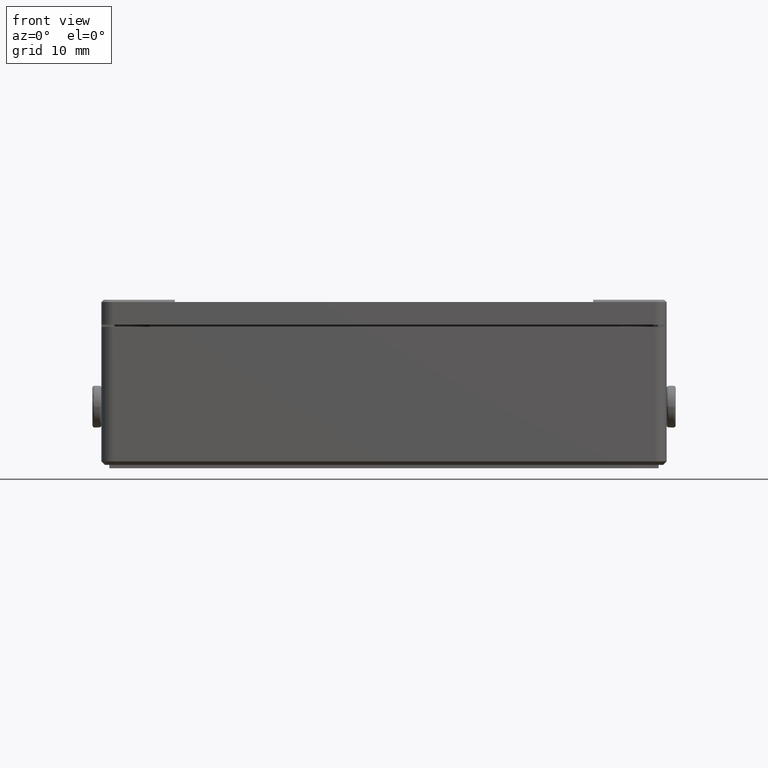
[diagram: clean part render]
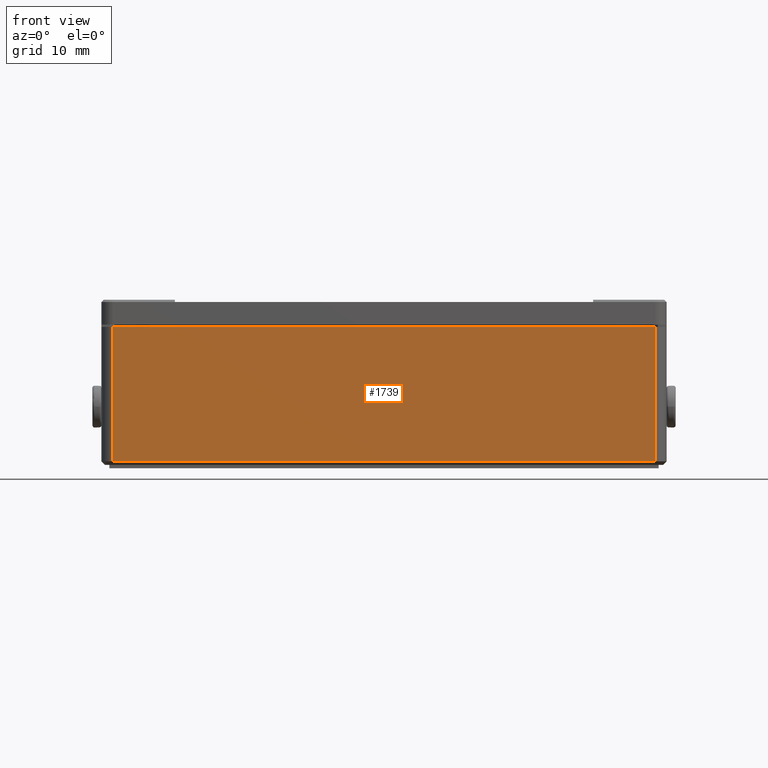
[diagram: same view with one face highlighted and labeled with its STEP entity id]
A machine part, front view. The second image highlights one B-rep face of the part: STEP entity #1739.
In plain terms, the highlighted planar face has unit normal (0, 1, 0).
Its self-contained STEP definition (entity closure, byte-faithful):
#347 = FACE_OUTER_BOUND ( 'NONE', #2786, .T. ) ;
#405 = LINE ( 'NONE', #7816, #4806 ) ;
#608 = CARTESIAN_POINT ( 'NONE',  ( 21.62210796915164934, 2.600000000000000089, -13.81748071979434123 ) ) ;
#1212 = VERTEX_POINT ( 'NONE', #4735 ) ;
#1396 = PLANE ( 'NONE',  #5105 ) ;
#1739 = ADVANCED_FACE ( 'NONE', ( #347 ), #1396, .F. ) ;
#2001 = EDGE_CURVE ( 'NONE', #2360, #1212, #11667, .T. ) ;
#2360 = VERTEX_POINT ( 'NONE', #608 ) ;
#2523 = ORIENTED_EDGE ( 'NONE', *, *, #11942, .T. ) ;
#2786 = EDGE_LOOP ( 'NONE', ( #7942, #2523, #10269, #12854 ) ) ;
#3110 = CARTESIAN_POINT ( 'NONE',  ( -26.37789203084835066, -9.299999999999998934, -13.81748071979434123 ) ) ;
#3556 = CARTESIAN_POINT ( 'NONE',  ( -27.37789203084835421, -9.299999999999998934, -13.81748071979434123 ) ) ;
#3561 = LINE ( 'NONE', #7778, #10626 ) ;
#4045 = EDGE_CURVE ( 'NONE', #8669, #12359, #3561, .T. ) ;
#4735 = CARTESIAN_POINT ( 'NONE',  ( 21.62210796915164934, -9.299999999999998934, -13.81748071979434123 ) ) ;
#4806 = VECTOR ( 'NONE', #10891, 1000.000000000000000 ) ;
#5043 = CARTESIAN_POINT ( 'NONE',  ( -26.37789203084835066, 2.600000000000000089, -13.81748071979434123 ) ) ;
#5105 = AXIS2_PLACEMENT_3D ( 'NONE', #5621, #13205, #8825 ) ;
#5621 = CARTESIAN_POINT ( 'NONE',  ( 22.62210796915164934, 2.899999999999999911, -13.81748071979434123 ) ) ;
#5919 = VECTOR ( 'NONE', #7839, 1000.000000000000000 ) ;
#6293 = DIRECTION ( 'NONE',  ( 0.000000000000000000, -1.000000000000000000, 0.000000000000000000 ) ) ;
#6500 = CARTESIAN_POINT ( 'NONE',  ( 21.62210796915164934, 2.899999999999999911, -13.81748071979434123 ) ) ;
#7778 = CARTESIAN_POINT ( 'NONE',  ( -26.37789203084835066, 2.899999999999999911, -13.81748071979434123 ) ) ;
#7816 = CARTESIAN_POINT ( 'NONE',  ( 21.62210796915164934, 2.600000000000000089, -13.81748071979434123 ) ) ;
#7839 = DIRECTION ( 'NONE',  ( 1.000000000000000000, 0.000000000000000000, 0.000000000000000000 ) ) ;
#7942 = ORIENTED_EDGE ( 'NONE', *, *, #4045, .T. ) ;
#8669 = VERTEX_POINT ( 'NONE', #3110 ) ;
#8825 = DIRECTION ( 'NONE',  ( 1.000000000000000000, 0.000000000000000000, 0.000000000000000000 ) ) ;
#10269 = ORIENTED_EDGE ( 'NONE', *, *, #2001, .T. ) ;
#10626 = VECTOR ( 'NONE', #13222, 1000.000000000000000 ) ;
#10891 = DIRECTION ( 'NONE',  ( 1.000000000000000000, 0.000000000000000000, 0.000000000000000000 ) ) ;
#11667 = LINE ( 'NONE', #6500, #11911 ) ;
#11911 = VECTOR ( 'NONE', #6293, 1000.000000000000000 ) ;
#11942 = EDGE_CURVE ( 'NONE', #12359, #2360, #405, .T. ) ;
#12359 = VERTEX_POINT ( 'NONE', #5043 ) ;
#12536 = EDGE_CURVE ( 'NONE', #8669, #1212, #13012, .T. ) ;
#12854 = ORIENTED_EDGE ( 'NONE', *, *, #12536, .F. ) ;
#13012 = LINE ( 'NONE', #3556, #5919 ) ;
#13205 = DIRECTION ( 'NONE',  ( 0.000000000000000000, 0.000000000000000000, 1.000000000000000000 ) ) ;
#13222 = DIRECTION ( 'NONE',  ( 0.000000000000000000, 1.000000000000000000, 0.000000000000000000 ) ) ;